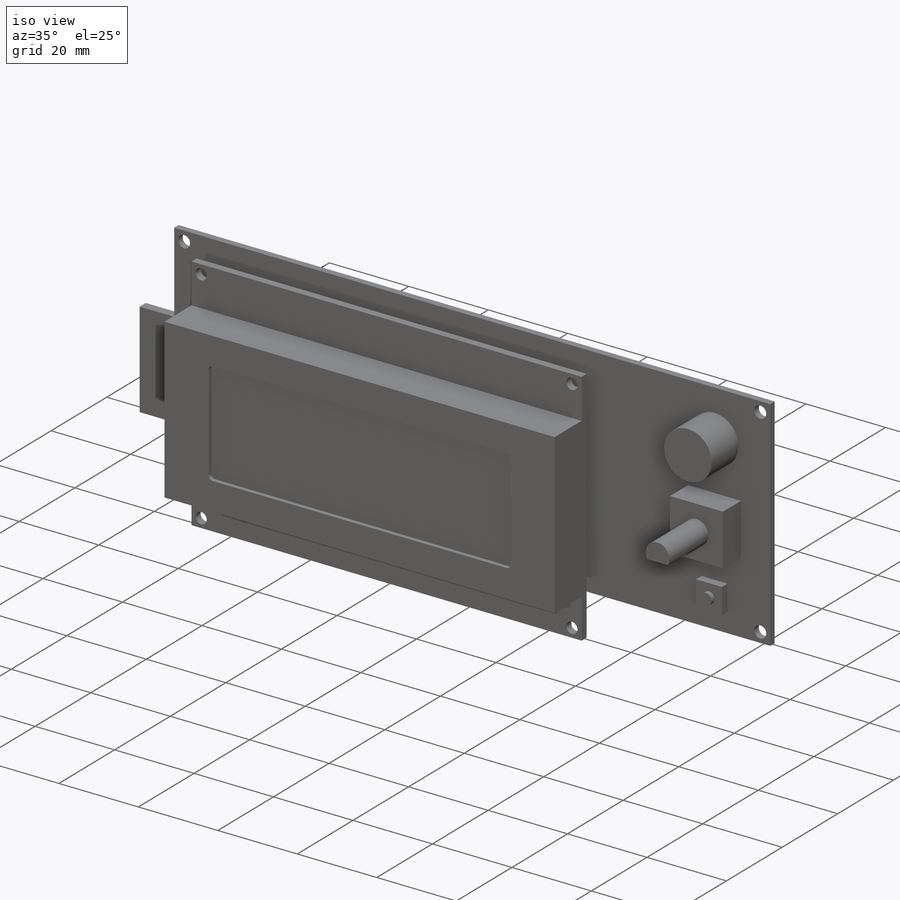
[diagram: iso view]
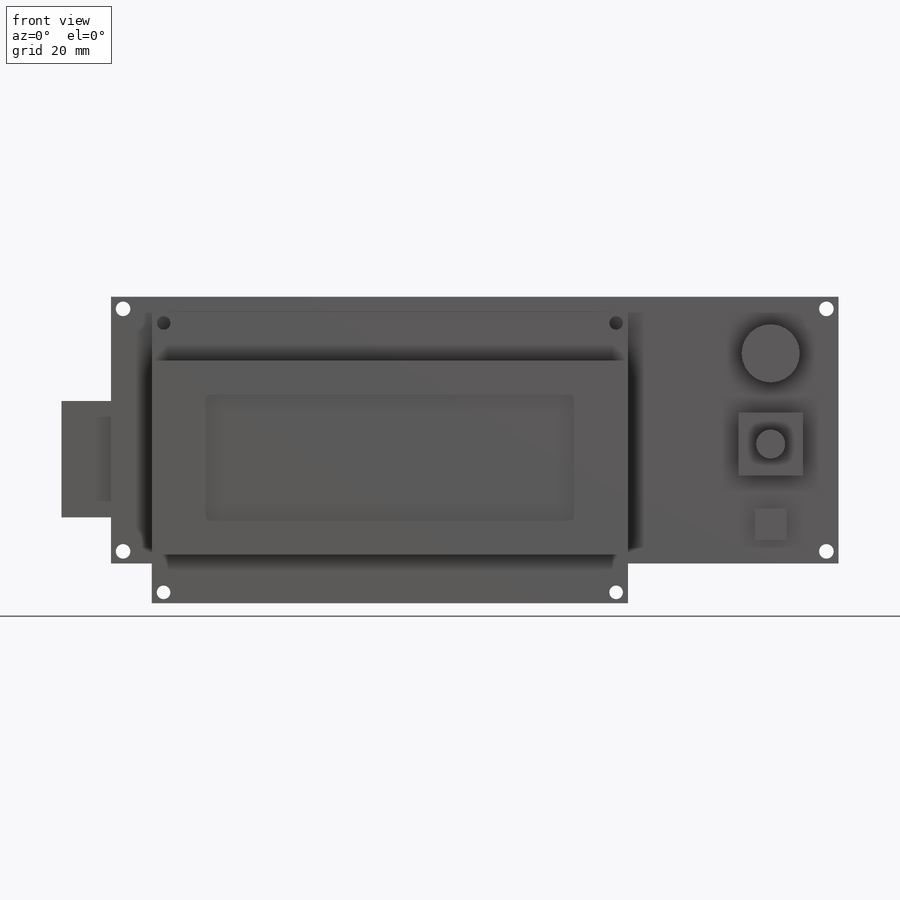
[diagram: front view]
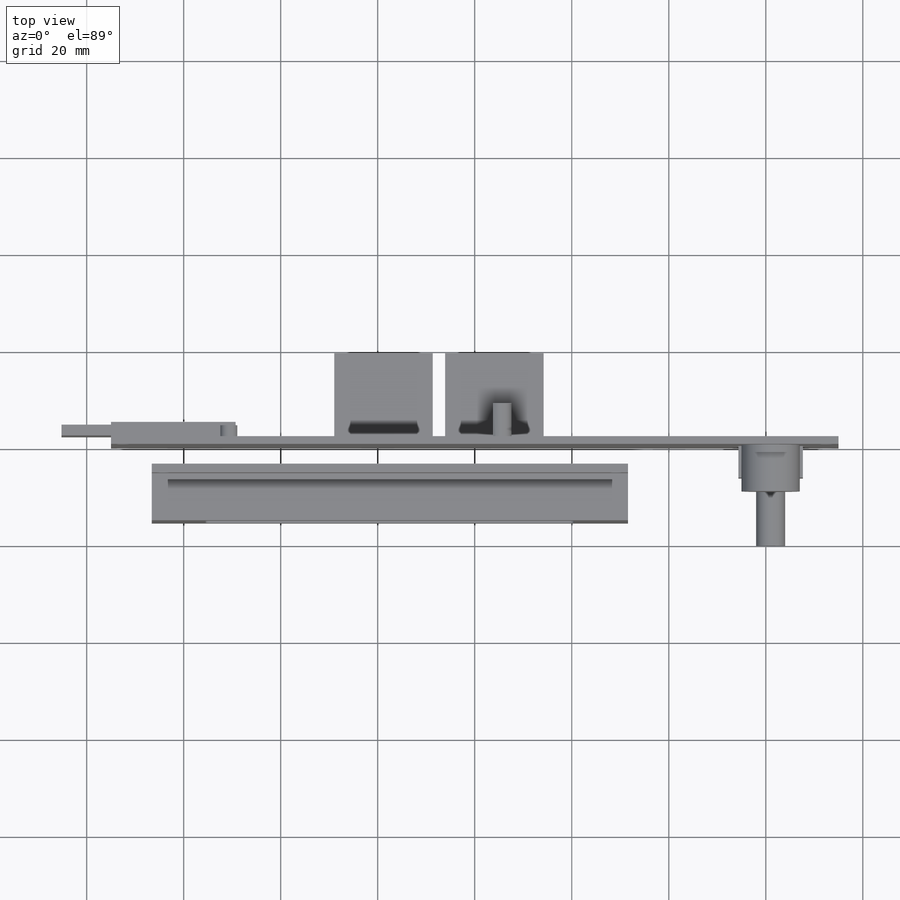
[diagram: top view]
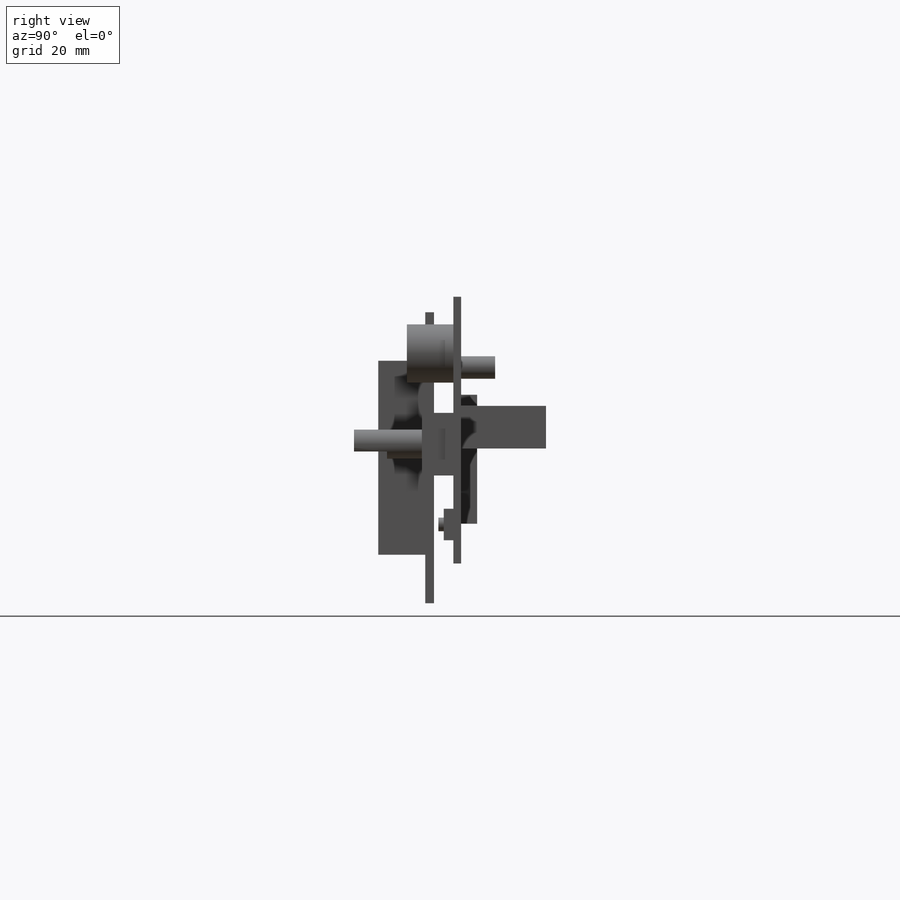
[diagram: right view]
SOLIDWORKS PART (.sldprt)
format: sldprt  version: not decoded by parser v0  size: 564,736 bytes
history: native  units: mm
features: sketch x19, extrude x13, hole x2, cut_extrude x2, material x1, pattern_linear x1, plane x1, fillet x1 (+11 scaffold rows collapsed)
feature tree (51):
  scaffold x11  (default folders/planes/origin — collapsed)
  material  "Material <not specified>"
  sketch  "Sketch1"  dims[D1=150.0mm D2=55.0mm]
  extrude  "PCB"  Depth=1.6mm
  hole  "Ø3.0 (3) Diameter Hole1"  Diameter=3mm Depth=4mm
  sketch  "Sketch3"  dims[D1=2.5mm D2=2.5mm]
  sketch  "Sketch2"  dims[hole-wizard template sketch: 47 standard entries collapsed; hole parameters kept: c15.Hole Depth=4.0mm c15.D3=~14.816244mm c15.Drill Angle=118.0deg]
  sketch  "Sketch4"  dims[D1=20.3mm D2=8.8mm D3=32.5mm D4=60.8mm]
  extrude  "IDC conn"  Depth=17.5mm
  pattern_linear  "LPattern1"  Count1=2 Count2=1 Spacing1=22.86mm Spacing2=10mm
  sketch  "Sketch5"  dims[D1=26.6mm D2=25.7mm D3=8.2mm]
  extrude  "SD socket"  Depth=3.3mm
  sketch  "Sketch6"  dims[D1=24.0mm D2=2.2mm]
  extrude  "SD card"  Depth=10.2mm
  sketch  "Sketch7"  dims[D1=3.5mm D2=14.4mm D3=24.3mm D4=0.5mm D5=2.0mm]
  extrude  "Contrast pot"  Depth=2.5mm
  sketch  "Sketch8"  dims[D1=2.325mm D2=3.76mm D3=14.6mm D4=71.2mm]
  extrude  "2N3901"  Depth=7mm
  plane  "Plane1"  Offset=4mm
  sketch  "Sketch9"  dims[D1=60.0mm D2=98.2mm D3=8.4mm D4=3.2mm]
  extrude  "LCD PCB"  Depth=1.8mm
  sketch  "Sketch10"  dims[D1=40.0mm]
  extrude  "LCD housing"  Depth=9.7mm
  sketch  "Sketch11"  dims[D1=76.0mm D2=26.0mm]
  cut_extrude  "Cut-Extrude1"  Depth=1mm
  fillet  "Fillet1"  Radius=1mm
  hole  "Ø2.8 (2.8) Diameter Hole1"  Diameter=2.8mm Depth=4mm
  sketch  "Sketch13"  dims[D1=55.5mm D2=93.3mm]
  sketch  "Sketch12"  dims[hole-wizard template sketch: 46 standard entries collapsed; hole parameters kept: c15.Hole Dia.=2.8mm c15.Hole Depth=4.0mm c15.D3=~14.816244mm c15.Drill Angle=118.0deg]
  sketch  "Sketch14"  dims[D1=12.0mm D2=11.7mm D3=14.0mm]
  extrude  "buzzer"  Depth=9.6mm
  sketch  "Sketch15"  dims[D1=13.3mm D2=12.9mm D3=30.4mm]
  extrude  "enc body"  Depth=6.5mm
  sketch  "Sketch16"  dims[D1=3.0mm]
  extrude  "enc shaft"  Depth=14mm
  sketch  "Sketch17"  dims[D1=4.5mm]
  cut_extrude  "enc shaft flat"  Depth=6.8mm
  sketch  "Sketch18"  dims[D1=6.5mm D2=4.8mm]
  extrude  "e-stop sw body"  Depth=2mm
  sketch  "Sketch19"  dims[D1=2.8mm]
  extrude  "e-stop sw button"  Depth=1.1mm
decode coverage: 38 of 38 modeling features carry decoded parameters
note: ~ marks probable driven/reference dimensions
note: suppression state not decoded; provenance and decode notes live in map.json
